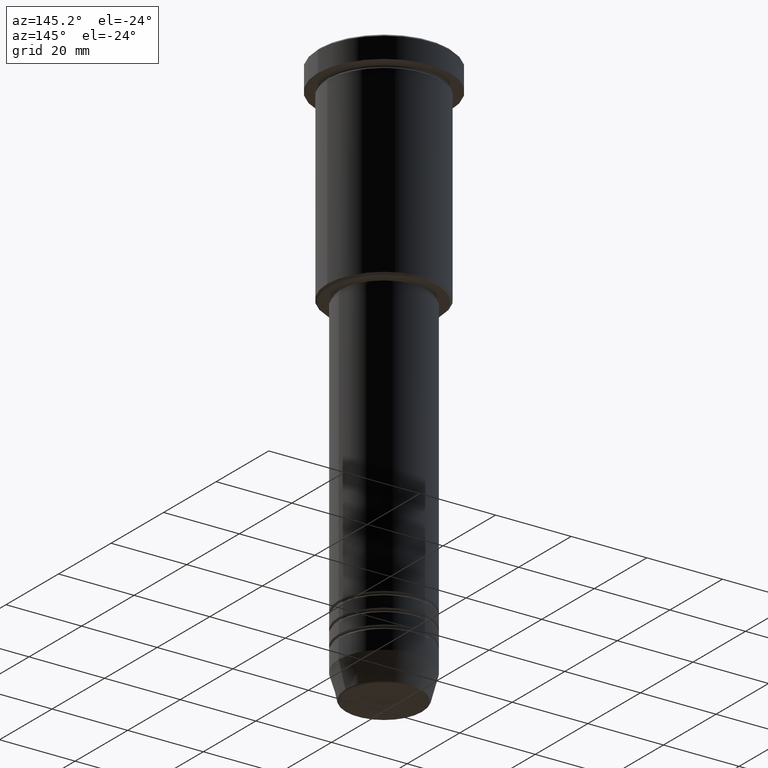
[diagram: clean part render]
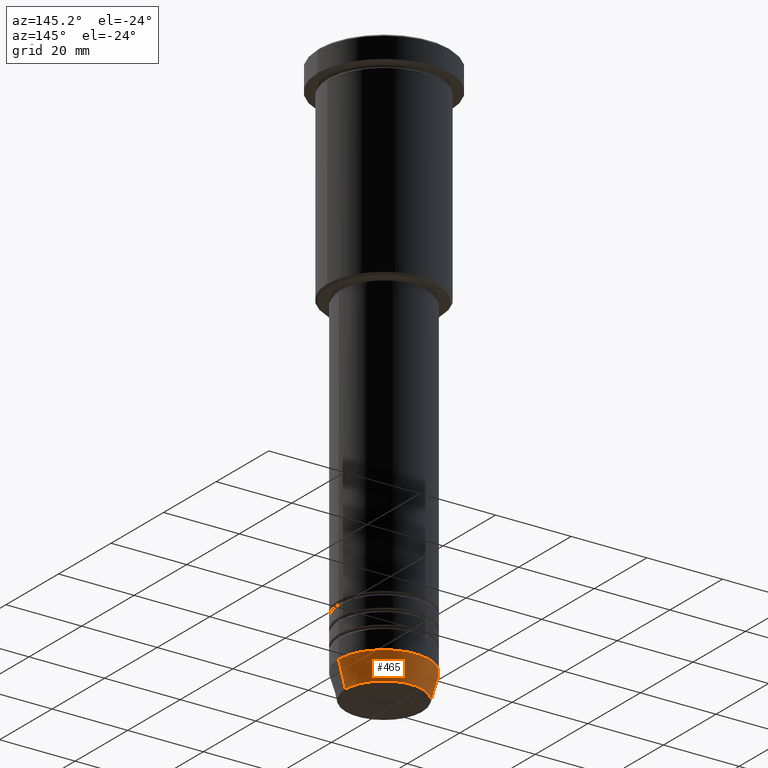
[diagram: same view with one face highlighted and labeled with its STEP entity id]
A machine part, auxiliary view. The second image highlights one B-rep face of the part: STEP entity #465.
In plain terms, the highlighted conical surface has half-angle 15 deg.
Its self-contained STEP definition (entity closure, byte-faithful):
#37 = CIRCLE ( 'NONE', #788, 10.22365507213719127 ) ;
#86 = CARTESIAN_POINT ( 'NONE',  ( 12.00000000000000000, 0.000000000000000000, -144.0000000000000284 ) ) ;
#87 = CARTESIAN_POINT ( 'NONE',  ( -12.00000000000000000, 1.469576158976823947E-15, -144.0000000000000284 ) ) ;
#130 = CARTESIAN_POINT ( 'NONE',  ( -12.00000000000000000, 1.469576158976823947E-15, -144.0000000000000284 ) ) ;
#148 = EDGE_CURVE ( 'NONE', #1062, #1139, #971, .T. ) ;
#149 = CARTESIAN_POINT ( 'NONE',  ( 0.000000000000000000, 0.000000000000000000, -150.6294095225512706 ) ) ;
#158 = DIRECTION ( 'NONE',  ( 1.000000000000000000, 0.000000000000000000, 0.000000000000000000 ) ) ;
#250 = EDGE_CURVE ( 'NONE', #1023, #1139, #273, .T. ) ;
#273 = CIRCLE ( 'NONE', #441, 12.00000000000000000 ) ;
#287 = CONICAL_SURFACE ( 'NONE', #1015, 12.00000000000000000, 0.2617993877991500740 ) ;
#356 = CARTESIAN_POINT ( 'NONE',  ( 10.22365507213719127, 0.000000000000000000, -150.6294095225512706 ) ) ;
#360 = VECTOR ( 'NONE', #920, 1000.000000000000000 ) ;
#379 = ORIENTED_EDGE ( 'NONE', *, *, #917, .F. ) ;
#438 = DIRECTION ( 'NONE',  ( -0.000000000000000000, -0.000000000000000000, 1.000000000000000000 ) ) ;
#441 = AXIS2_PLACEMENT_3D ( 'NONE', #536, #438, #1170 ) ;
#465 = ADVANCED_FACE ( 'NONE', ( #884 ), #287, .T. ) ;
#485 = ORIENTED_EDGE ( 'NONE', *, *, #148, .T. ) ;
#499 = EDGE_LOOP ( 'NONE', ( #682, #485, #895, #379 ) ) ;
#517 = DIRECTION ( 'NONE',  ( -0.000000000000000000, -0.000000000000000000, 1.000000000000000000 ) ) ;
#536 = CARTESIAN_POINT ( 'NONE',  ( 0.000000000000000000, 0.000000000000000000, -144.0000000000000284 ) ) ;
#542 = LINE ( 'NONE', #86, #901 ) ;
#682 = ORIENTED_EDGE ( 'NONE', *, *, #845, .T. ) ;
#710 = CARTESIAN_POINT ( 'NONE',  ( 0.000000000000000000, 0.000000000000000000, -144.0000000000000284 ) ) ;
#788 = AXIS2_PLACEMENT_3D ( 'NONE', #149, #517, #876 ) ;
#845 = EDGE_CURVE ( 'NONE', #995, #1062, #37, .T. ) ;
#861 = CARTESIAN_POINT ( 'NONE',  ( -10.22365507213719127, 1.360806402472382744E-15, -150.6294095225512706 ) ) ;
#876 = DIRECTION ( 'NONE',  ( 1.000000000000000000, 0.000000000000000000, 0.000000000000000000 ) ) ;
#884 = FACE_OUTER_BOUND ( 'NONE', #499, .T. ) ;
#895 = ORIENTED_EDGE ( 'NONE', *, *, #250, .F. ) ;
#901 = VECTOR ( 'NONE', #1005, 1000.000000000000000 ) ;
#917 = EDGE_CURVE ( 'NONE', #995, #1023, #542, .T. ) ;
#920 = DIRECTION ( 'NONE',  ( -0.2588190451025213501, 3.169619151431772337E-17, 0.9659258262890680902 ) ) ;
#951 = CARTESIAN_POINT ( 'NONE',  ( 12.00000000000000000, 0.000000000000000000, -144.0000000000000284 ) ) ;
#971 = LINE ( 'NONE', #87, #360 ) ;
#995 = VERTEX_POINT ( 'NONE', #356 ) ;
#1005 = DIRECTION ( 'NONE',  ( 0.2588190451025213501, 0.000000000000000000, 0.9659258262890680902 ) ) ;
#1015 = AXIS2_PLACEMENT_3D ( 'NONE', #710, #1143, #158 ) ;
#1023 = VERTEX_POINT ( 'NONE', #951 ) ;
#1062 = VERTEX_POINT ( 'NONE', #861 ) ;
#1139 = VERTEX_POINT ( 'NONE', #130 ) ;
#1143 = DIRECTION ( 'NONE',  ( -0.000000000000000000, -0.000000000000000000, 1.000000000000000000 ) ) ;
#1170 = DIRECTION ( 'NONE',  ( 1.000000000000000000, 0.000000000000000000, 0.000000000000000000 ) ) ;